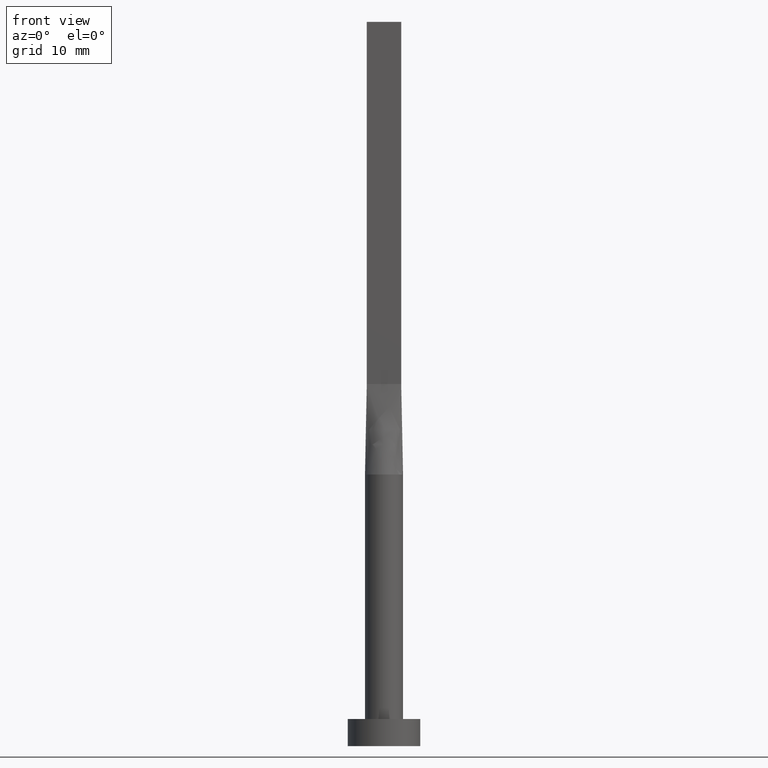
[diagram: clean part render]
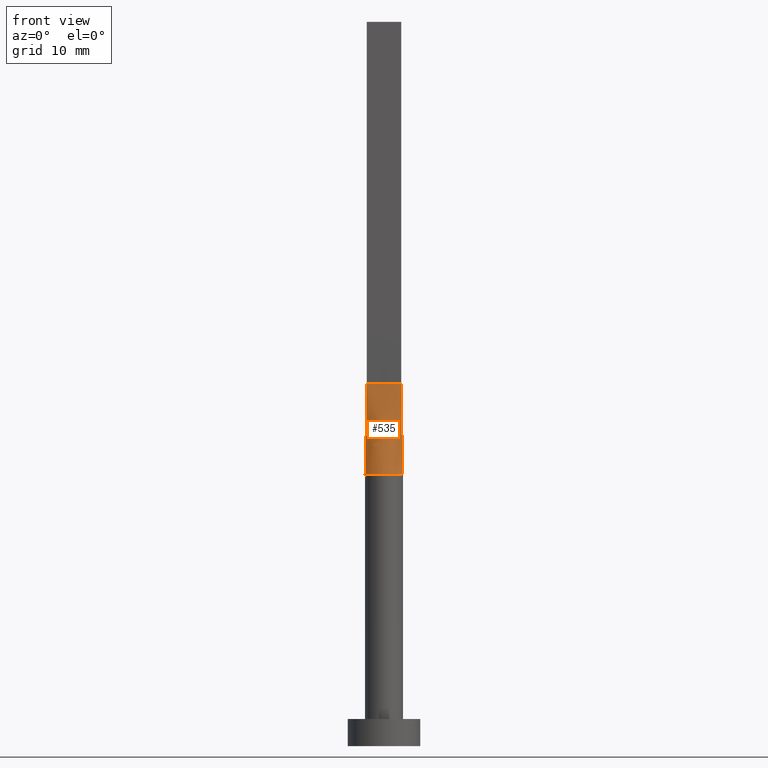
[diagram: same view with one face highlighted and labeled with its STEP entity id]
A machine part, front view. The second image highlights one B-rep face of the part: STEP entity #535.
In plain terms, the highlighted face is a freeform B-spline surface patch.
Its self-contained STEP definition (entity closure, byte-faithful):
#8 = CARTESIAN_POINT ( 'NONE',  ( 0.2698109971861026857, -2.100000000000000977, 30.00000000000001066 ) ) ;
#13 = CARTESIAN_POINT ( 'NONE',  ( 1.583604922800829984, -1.399063468093436846, 29.99999999999998934 ) ) ;
#14 = EDGE_CURVE ( 'NONE', #488, #80, #297, .T. ) ;
#16 = CARTESIAN_POINT ( 'NONE',  ( 1.021961681204344830, -1.852908961101259910, 30.00000000000000000 ) ) ;
#17 = CARTESIAN_POINT ( 'NONE',  ( 0.000000000000000000, 0.000000000000000000, 30.00000000000000000 ) ) ;
#23 = CARTESIAN_POINT ( 'NONE',  ( 0.6333333333333344140, -0.4999999999999997780, 39.99999999999999289 ) ) ;
#30 = CARTESIAN_POINT ( 'NONE',  ( 1.899999999999999023, -0.4999999999999997780, 40.00000000000000000 ) ) ;
#35 = CARTESIAN_POINT ( 'NONE',  ( -2.031004407172260162, -0.5344754071304557153, 30.00000000000000000 ) ) ;
#40 = EDGE_CURVE ( 'NONE', #80, #472, #249, .T. ) ;
#42 = CARTESIAN_POINT ( 'NONE',  ( -1.235326090059015725, -1.714395692508636104, 29.99999999999998224 ) ) ;
#44 = CARTESIAN_POINT ( 'NONE',  ( 0.3166666666666676511, -0.4999999999999997780, 39.99999999999999289 ) ) ;
#58 = LINE ( 'NONE', #475, #373 ) ;
#66 = VECTOR ( 'NONE', #318, 1000.000000000000000 ) ;
#72 = CARTESIAN_POINT ( 'NONE',  ( -0.7916666666666650753, -0.4999999999999995559, 39.99999999999999289 ) ) ;
#77 = DIRECTION ( 'NONE',  ( -0.01308445504626047293, -0.003443277643752733208, -0.9999084662483913588 ) ) ;
#78 = CARTESIAN_POINT ( 'NONE',  ( -1.021961681204347050, -1.852908961101258578, 29.99999999999999289 ) ) ;
#80 = VERTEX_POINT ( 'NONE', #35 ) ;
#93 = CARTESIAN_POINT ( 'NONE',  ( -0.6333333333333316384, -0.4999999999999996669, 39.99999999999999289 ) ) ;
#104 = CARTESIAN_POINT ( 'NONE',  ( 1.266666666666667052, -0.4999999999999997780, 40.00000000000000000 ) ) ;
#124 = VECTOR ( 'NONE', #77, 1000.000000000000114 ) ;
#131 = CARTESIAN_POINT ( 'NONE',  ( -1.719043754744862484, -1.223020672007444798, 29.99999999999998224 ) ) ;
#135 = CARTESIAN_POINT ( 'NONE',  ( -0.5389299406762309008, -2.046272663899432409, 30.00000000000000711 ) ) ;
#138 = CARTESIAN_POINT ( 'NONE',  ( -1.899999999999999911, -0.4999999999999995559, 40.00000000000000000 ) ) ;
#140 = CARTESIAN_POINT ( 'NONE',  ( -0.1583333333333323267, -0.4999999999999997780, 40.00000000000000000 ) ) ;
#146 = CARTESIAN_POINT ( 'NONE',  ( 0.5389299406762287914, -2.046272663899431965, 30.00000000000000355 ) ) ;
#150 = EDGE_CURVE ( 'NONE', #472, #336, #58, .T. ) ;
#159 = CARTESIAN_POINT ( 'NONE',  ( -1.899999999999999911, -0.4999999999999995559, 40.00000000000000000 ) ) ;
#170 = FACE_OUTER_BOUND ( 'NONE', #340, .T. ) ;
#181 = CARTESIAN_POINT ( 'NONE',  ( -0.2698109971861053502, -2.100000000000000089, 30.00000000000001066 ) ) ;
#186 = CARTESIAN_POINT ( 'NONE',  ( 0.1583333333333341586, -0.4999999999999997780, 39.99999999999999289 ) ) ;
#190 = EDGE_CURVE ( 'NONE', #488, #336, #233, .T. ) ;
#195 = CARTESIAN_POINT ( 'NONE',  ( 1.920830191244603302, -0.8725264301372632758, 30.00000000000000711 ) ) ;
#202 = B_SPLINE_SURFACE_WITH_KNOTS ( 'NONE', 3, 1, ( 
 ( #404, #576 ),
 ( #578, #359 ),
 ( #311, #308 ),
 ( #131, #533 ),
 ( #497, #499 ),
 ( #42, #72 ),
 ( #78, #93 ),
 ( #135, #421 ),
 ( #181, #140 ),
 ( #8, #186 ),
 ( #146, #44 ),
 ( #16, #23 ),
 ( #237, #425 ),
 ( #13, #242 ),
 ( #329, #104 ),
 ( #195, #581 ),
 ( #217, #296 ),
 ( #360, #30 ) ),
 .UNSPECIFIED., .F., .F., .F.,
 ( 4, 2, 2, 2, 2, 2, 2, 2, 4 ),
 ( 2, 2 ),
 ( 0.000000000000000000, 0.1250000000000000555, 0.2500000000000001665, 0.3750000000000002776, 0.5000000000000003331, 0.6250000000000002220, 0.7500000000000002220, 0.8750000000000001110, 1.000000000000000000 ),
 ( 0.000000000000000000, 1.000000000000000000 ),
 .UNSPECIFIED. ) ;
#207 = CARTESIAN_POINT ( 'NONE',  ( 1.899999999999999023, -0.4999999999999997780, 40.00000000000000000 ) ) ;
#217 = CARTESIAN_POINT ( 'NONE',  ( 1.987786580065029396, -0.6981017315960611480, 30.00000000000001066 ) ) ;
#233 = LINE ( 'NONE', #138, #66 ) ;
#237 = CARTESIAN_POINT ( 'NONE',  ( 1.235326090059013504, -1.714395692508636548, 29.99999999999999289 ) ) ;
#242 = CARTESIAN_POINT ( 'NONE',  ( 1.108333333333334059, -0.4999999999999997780, 40.00000000000000000 ) ) ;
#249 = CIRCLE ( 'NONE', #516, 2.100000000000000089 ) ;
#259 = DIRECTION ( 'NONE',  ( 0.000000000000000000, 0.000000000000000000, 1.000000000000000000 ) ) ;
#268 = ORIENTED_EDGE ( 'NONE', *, *, #150, .T. ) ;
#278 = DIRECTION ( 'NONE',  ( -0.01308445504626047293, 0.003443277643752830786, 0.9999084662483913588 ) ) ;
#296 = CARTESIAN_POINT ( 'NONE',  ( 1.741666666666666030, -0.4999999999999997780, 40.00000000000000000 ) ) ;
#297 = LINE ( 'NONE', #484, #124 ) ;
#308 = CARTESIAN_POINT ( 'NONE',  ( -1.583333333333332815, -0.4999999999999995559, 40.00000000000000000 ) ) ;
#311 = CARTESIAN_POINT ( 'NONE',  ( -1.920830191244604412, -0.8725264301372614995, 29.99999999999999289 ) ) ;
#318 = DIRECTION ( 'NONE',  ( 1.000000000000000000, -5.706327223607918787E-17, 0.000000000000000000 ) ) ;
#329 = CARTESIAN_POINT ( 'NONE',  ( 1.719043754744861374, -1.223020672007445908, 30.00000000000000000 ) ) ;
#336 = VERTEX_POINT ( 'NONE', #207 ) ;
#340 = EDGE_LOOP ( 'NONE', ( #357, #268, #403, #354 ) ) ;
#354 = ORIENTED_EDGE ( 'NONE', *, *, #14, .T. ) ;
#357 = ORIENTED_EDGE ( 'NONE', *, *, #40, .T. ) ;
#359 = CARTESIAN_POINT ( 'NONE',  ( -1.741666666666666474, -0.4999999999999995559, 40.00000000000000000 ) ) ;
#360 = CARTESIAN_POINT ( 'NONE',  ( 2.030856528251557158, -0.5344359284872526317, 30.00000000000000000 ) ) ;
#373 = VECTOR ( 'NONE', #278, 1000.000000000000114 ) ;
#403 = ORIENTED_EDGE ( 'NONE', *, *, #190, .F. ) ;
#404 = CARTESIAN_POINT ( 'NONE',  ( -2.030856528251558046, -0.5344359284872515214, 30.00000000000000000 ) ) ;
#421 = CARTESIAN_POINT ( 'NONE',  ( -0.3166666666666652641, -0.4999999999999997780, 39.99999999999999289 ) ) ;
#425 = CARTESIAN_POINT ( 'NONE',  ( 0.7916666666666676289, -0.4999999999999997780, 39.99999999999999289 ) ) ;
#437 = DIRECTION ( 'NONE',  ( 1.000000000000000000, 0.000000000000000000, 0.000000000000000000 ) ) ;
#472 = VERTEX_POINT ( 'NONE', #478 ) ;
#475 = CARTESIAN_POINT ( 'NONE',  ( 1.965428264125778091, -0.5172179642436263158, 35.00000000000000000 ) ) ;
#478 = CARTESIAN_POINT ( 'NONE',  ( 2.031027953490633031, -0.5344816358097418396, 30.00000000000000000 ) ) ;
#484 = CARTESIAN_POINT ( 'NONE',  ( -1.965428264125778979, -0.5172179642436255387, 35.00000000000000000 ) ) ;
#488 = VERTEX_POINT ( 'NONE', #159 ) ;
#497 = CARTESIAN_POINT ( 'NONE',  ( -1.583604922800831760, -1.399063468093435958, 29.99999999999998934 ) ) ;
#499 = CARTESIAN_POINT ( 'NONE',  ( -1.108333333333332282, -0.4999999999999995559, 39.99999999999999289 ) ) ;
#516 = AXIS2_PLACEMENT_3D ( 'NONE', #17, #259, #437 ) ;
#533 = CARTESIAN_POINT ( 'NONE',  ( -1.266666666666665719, -0.4999999999999995559, 39.99999999999999289 ) ) ;
#535 = ADVANCED_FACE ( 'NONE', ( #170 ), #202, .T. ) ;
#576 = CARTESIAN_POINT ( 'NONE',  ( -1.899999999999999911, -0.4999999999999995559, 40.00000000000000000 ) ) ;
#578 = CARTESIAN_POINT ( 'NONE',  ( -1.987786580065029840, -0.6981017315960599268, 30.00000000000000711 ) ) ;
#581 = CARTESIAN_POINT ( 'NONE',  ( 1.583333333333333037, -0.4999999999999997780, 40.00000000000000000 ) ) ;